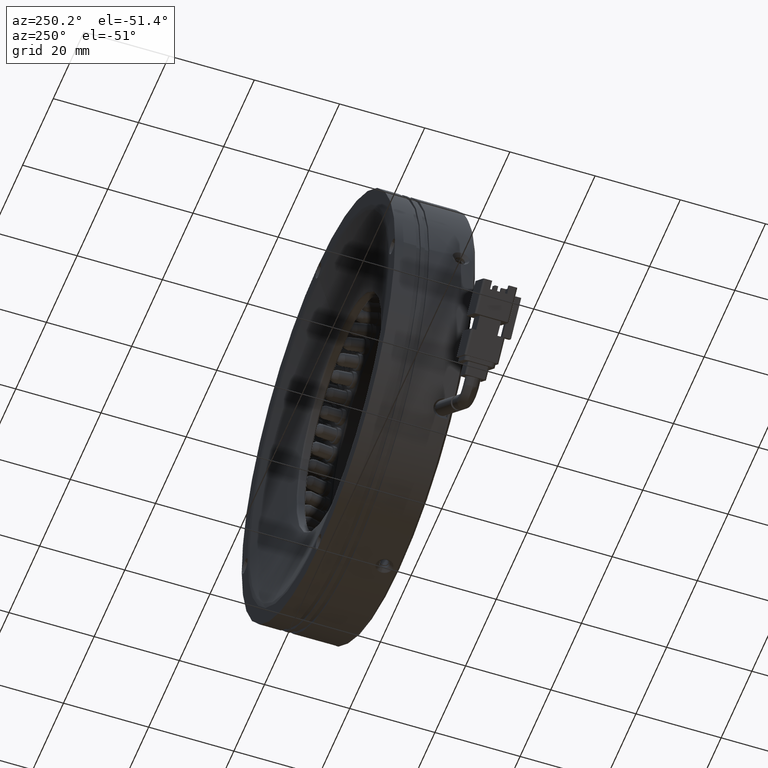
[diagram: clean part render]
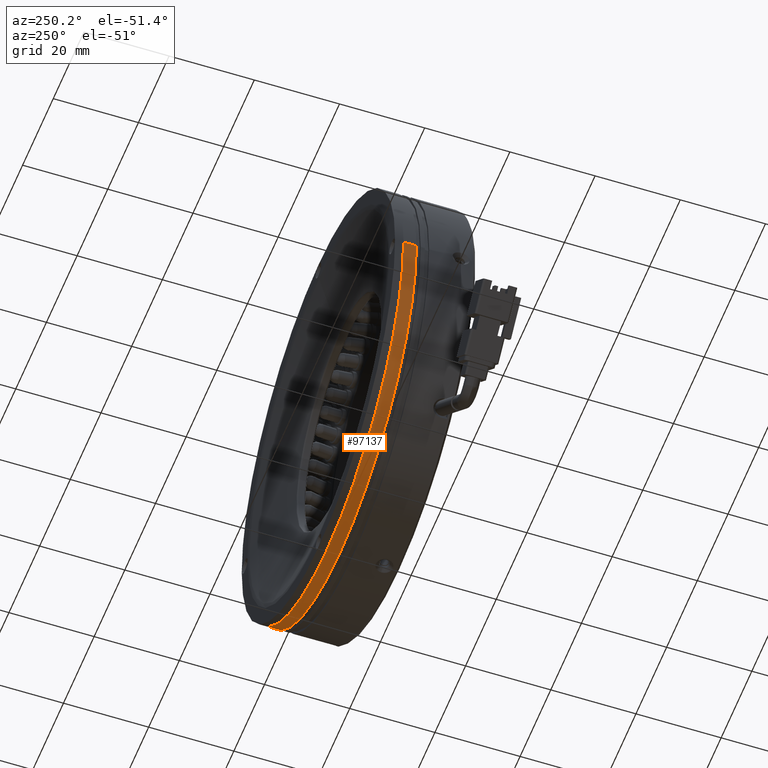
[diagram: same view with one face highlighted and labeled with its STEP entity id]
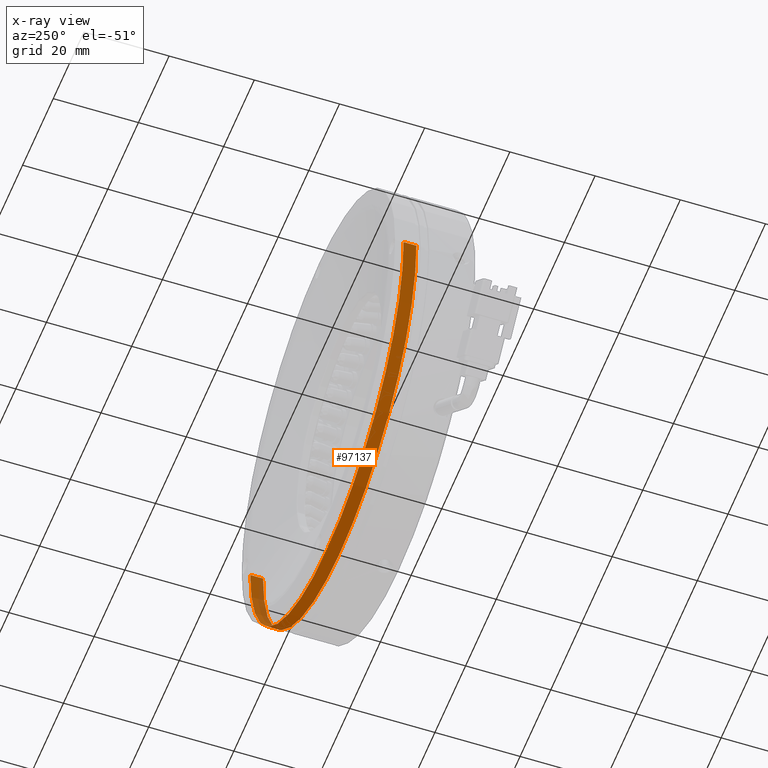
[diagram: x-ray of the same camera — body ghosted, the highlighted face saturated]
A machine part, auxiliary view. The second image highlights one B-rep face of the part: STEP entity #97137.
The next image is the same camera in x-ray: the body ghosted, the highlighted face saturated — about 4% of this face is hidden behind the body in this view.
In plain terms, the highlighted cylindrical surface (partial cylindrical patch) has radius 50 mm, axis along (-0, -1, 0).
Its self-contained STEP definition (entity closure, byte-faithful):
#1091 = CARTESIAN_POINT ( 'NONE',  ( 2.894644667477716200, 18.70591402987475100, -5.944477223830679800E-015 ) ) ;
#3464 = CARTESIAN_POINT ( 'NONE',  ( 2.894644667477716200, 15.70591402987475700, -5.944477223830679800E-015 ) ) ;
#14441 = DIRECTION ( 'NONE',  ( -1.000000000000000000, 0.0000000000000000000, -3.368832990346959800E-015 ) ) ;
#15903 = CARTESIAN_POINT ( 'NONE',  ( -47.10535533252228600, 18.70591402987475100, -1.743861267411786700E-013 ) ) ;
#16645 = VERTEX_POINT ( 'NONE', #68460 ) ;
#16894 = DIRECTION ( 'NONE',  ( -1.000000000000000000, 0.0000000000000000000, -3.368832990346959800E-015 ) ) ;
#18321 = VERTEX_POINT ( 'NONE', #140060 ) ;
#18687 = EDGE_CURVE ( 'NONE', #155364, #18321, #25673, .T. ) ;
#25673 = LINE ( 'NONE', #148715, #61440 ) ;
#25914 = EDGE_CURVE ( 'NONE', #126052, #16645, #45413, .T. ) ;
#38693 = ORIENTED_EDGE ( 'NONE', *, *, #132837, .T. ) ;
#45413 = LINE ( 'NONE', #134258, #148543 ) ;
#51008 = AXIS2_PLACEMENT_3D ( 'NONE', #65924, #146479, #147064 ) ;
#54556 = DIRECTION ( 'NONE',  ( -0.0000000000000000000, -1.000000000000000000, 0.0000000000000000000 ) ) ;
#60555 = AXIS2_PLACEMENT_3D ( 'NONE', #3464, #97463, #16894 ) ;
#61440 = VECTOR ( 'NONE', #54556, 1000.000000000000000 ) ;
#63967 = EDGE_LOOP ( 'NONE', ( #38693, #131462, #172254, #71265 ) ) ;
#65924 = CARTESIAN_POINT ( 'NONE',  ( 2.894644667477716200, 1.705914029874759900, -5.944477223830679800E-015 ) ) ;
#68460 = CARTESIAN_POINT ( 'NONE',  ( -47.10535533252228600, 15.70591402987475700, -1.743861267411786700E-013 ) ) ;
#71265 = ORIENTED_EDGE ( 'NONE', *, *, #25914, .F. ) ;
#75388 = FACE_OUTER_BOUND ( 'NONE', #63967, .T. ) ;
#94911 = EDGE_CURVE ( 'NONE', #18321, #16645, #152049, .T. ) ;
#95015 = DIRECTION ( 'NONE',  ( -0.0000000000000000000, -1.000000000000000000, 0.0000000000000000000 ) ) ;
#97137 = ADVANCED_FACE ( 'NONE', ( #75388 ), #165865, .T. ) ;
#97463 = DIRECTION ( 'NONE',  ( 0.0000000000000000000, 1.000000000000000000, -0.0000000000000000000 ) ) ;
#116480 = CARTESIAN_POINT ( 'NONE',  ( 52.89464466747771400, 18.70591402987475100, 1.563739382977805600E-013 ) ) ;
#126052 = VERTEX_POINT ( 'NONE', #15903 ) ;
#131462 = ORIENTED_EDGE ( 'NONE', *, *, #18687, .T. ) ;
#132837 = EDGE_CURVE ( 'NONE', #126052, #155364, #166729, .T. ) ;
#134258 = CARTESIAN_POINT ( 'NONE',  ( -47.10535533252228600, 1.705914029874759900, -1.743861267411786700E-013 ) ) ;
#140060 = CARTESIAN_POINT ( 'NONE',  ( 52.89464466747771400, 15.70591402987475700, 1.563739382977805600E-013 ) ) ;
#146479 = DIRECTION ( 'NONE',  ( -0.0000000000000000000, -1.000000000000000000, 0.0000000000000000000 ) ) ;
#147064 = DIRECTION ( 'NONE',  ( -1.000000000000000000, 0.0000000000000000000, -3.368832990346959800E-015 ) ) ;
#148346 = DIRECTION ( 'NONE',  ( -0.0000000000000000000, -1.000000000000000000, 0.0000000000000000000 ) ) ;
#148543 = VECTOR ( 'NONE', #148346, 1000.000000000000000 ) ;
#148715 = CARTESIAN_POINT ( 'NONE',  ( 52.89464466747771400, 1.705914029874759900, 1.563739382977805600E-013 ) ) ;
#148979 = AXIS2_PLACEMENT_3D ( 'NONE', #1091, #95015, #14441 ) ;
#152049 = CIRCLE ( 'NONE', #60555, 50.00000000000000000 ) ;
#155364 = VERTEX_POINT ( 'NONE', #116480 ) ;
#165865 = CYLINDRICAL_SURFACE ( 'NONE', #51008, 50.00000000000000000 ) ;
#166729 = CIRCLE ( 'NONE', #148979, 50.00000000000000000 ) ;
#172254 = ORIENTED_EDGE ( 'NONE', *, *, #94911, .T. ) ;